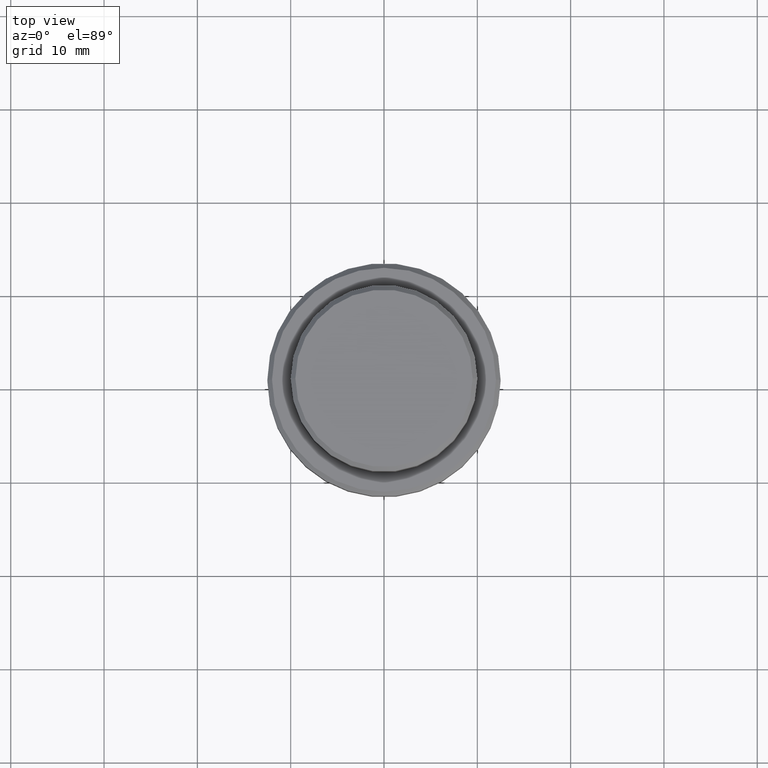
[diagram: clean part render]
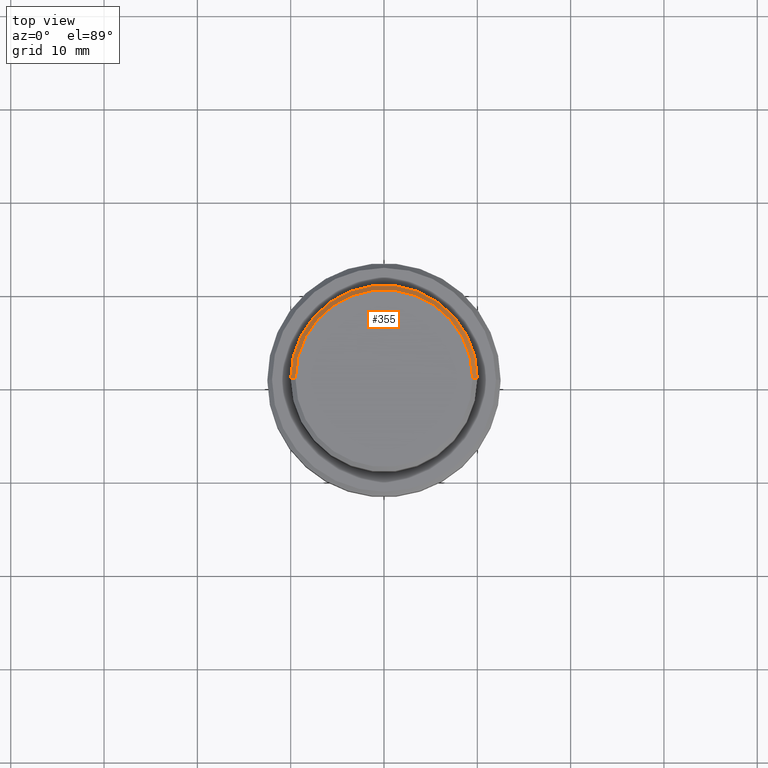
[diagram: same view with one face highlighted and labeled with its STEP entity id]
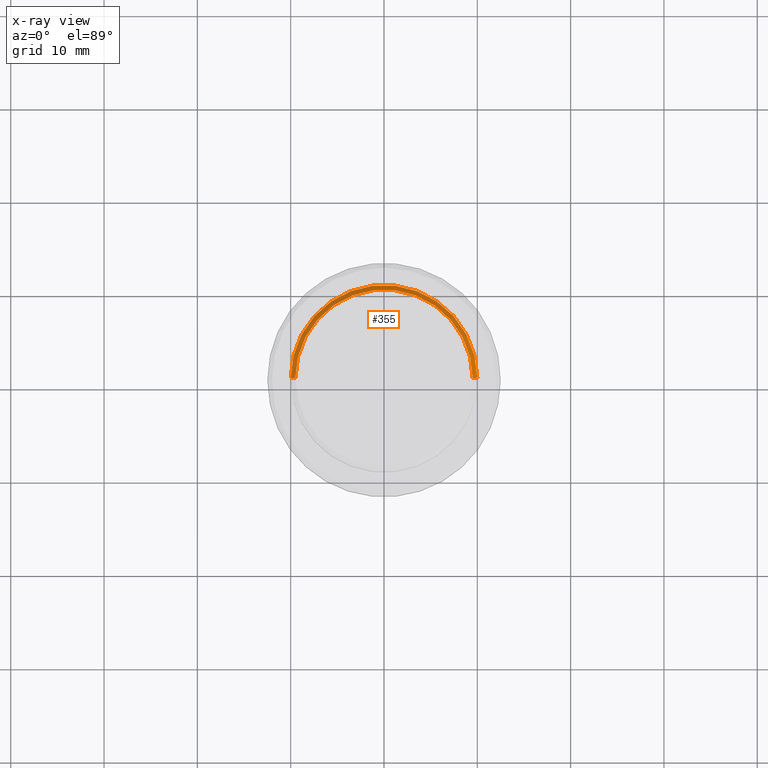
[diagram: x-ray of the same camera — body ghosted, the highlighted face saturated]
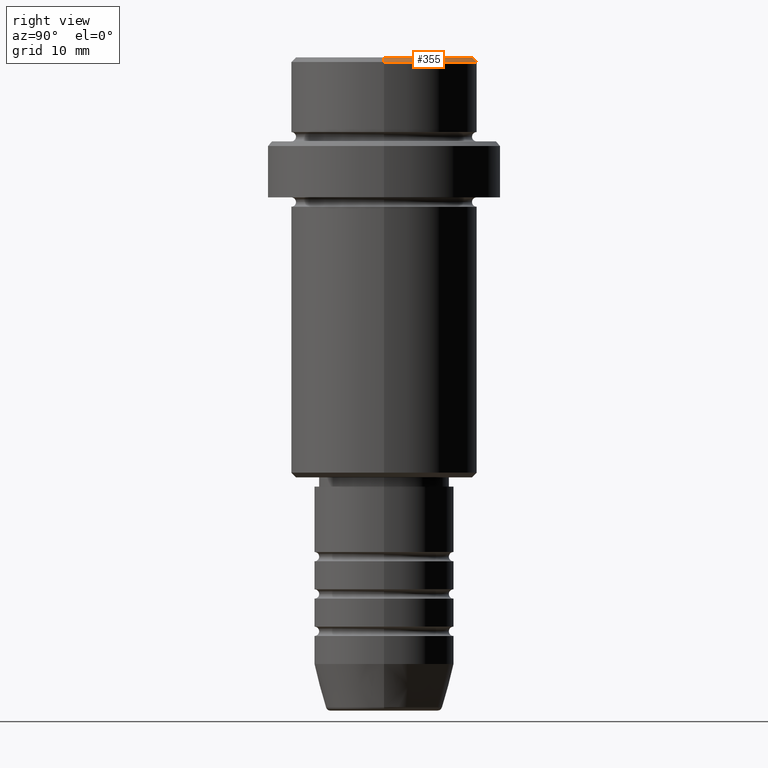
[diagram: same view with one face highlighted and labeled with its STEP entity id]
A machine part, top view. The second image highlights one B-rep face of the part: STEP entity #355.
The next image is the same camera in x-ray: the body ghosted, the highlighted face saturated — about 0% of this face is hidden behind the body in this view.
A second angle (right view) of the same face is appended — the face is thin or edge-on in the first view.
In plain terms, the highlighted conical surface has half-angle 45 deg.
Its self-contained STEP definition (entity closure, byte-faithful):
#2 = CARTESIAN_POINT ( 'NONE',  ( -9.499999999999994671, 0.000000000000000000, 0.000000000000000000 ) ) ;
#64 = AXIS2_PLACEMENT_3D ( 'NONE', #861, #631, #94 ) ;
#89 = VERTEX_POINT ( 'NONE', #1208 ) ;
#94 = DIRECTION ( 'NONE',  ( 1.000000000000000000, 0.000000000000000000, 0.000000000000000000 ) ) ;
#116 = CARTESIAN_POINT ( 'NONE',  ( -9.499999999999994671, 0.000000000000000000, 0.000000000000000000 ) ) ;
#196 = CARTESIAN_POINT ( 'NONE',  ( -9.999999999999998224, 1.224646799147353059E-15, -0.4999999999999970024 ) ) ;
#208 = ORIENTED_EDGE ( 'NONE', *, *, #680, .F. ) ;
#240 = VERTEX_POINT ( 'NONE', #1314 ) ;
#256 = VERTEX_POINT ( 'NONE', #116 ) ;
#355 = ADVANCED_FACE ( 'NONE', ( #1415 ), #359, .T. ) ;
#359 = CONICAL_SURFACE ( 'NONE', #1199, 9.499999999999994671, 0.7853981633974552734 ) ;
#416 = EDGE_CURVE ( 'NONE', #89, #240, #645, .T. ) ;
#421 = CIRCLE ( 'NONE', #64, 9.499999999999994671 ) ;
#463 = DIRECTION ( 'NONE',  ( -0.7071067811865525687, 0.000000000000000000, -0.7071067811865425767 ) ) ;
#466 = ORIENTED_EDGE ( 'NONE', *, *, #1197, .F. ) ;
#539 = LINE ( 'NONE', #2, #623 ) ;
#561 = DIRECTION ( 'NONE',  ( 0.000000000000000000, 0.000000000000000000, -1.000000000000000000 ) ) ;
#568 = DIRECTION ( 'NONE',  ( 0.7071067811865525687, 8.659560562354994488E-17, -0.7071067811865425767 ) ) ;
#623 = VECTOR ( 'NONE', #463, 999.9999999999998863 ) ;
#631 = DIRECTION ( 'NONE',  ( -0.000000000000000000, -0.000000000000000000, 1.000000000000000000 ) ) ;
#645 = LINE ( 'NONE', #882, #1056 ) ;
#649 = DIRECTION ( 'NONE',  ( 0.000000000000000000, 0.000000000000000000, -1.000000000000000000 ) ) ;
#680 = EDGE_CURVE ( 'NONE', #256, #1083, #539, .T. ) ;
#746 = CARTESIAN_POINT ( 'NONE',  ( 0.000000000000000000, 0.000000000000000000, 0.000000000000000000 ) ) ;
#775 = CARTESIAN_POINT ( 'NONE',  ( 0.000000000000000000, 0.000000000000000000, -0.4999999999999970024 ) ) ;
#861 = CARTESIAN_POINT ( 'NONE',  ( 0.000000000000000000, 0.000000000000000000, 0.000000000000000000 ) ) ;
#882 = CARTESIAN_POINT ( 'NONE',  ( 9.499999999999994671, 1.163414459189984894E-15, 0.000000000000000000 ) ) ;
#927 = ORIENTED_EDGE ( 'NONE', *, *, #416, .T. ) ;
#988 = CIRCLE ( 'NONE', #1342, 9.999999999999998224 ) ;
#1056 = VECTOR ( 'NONE', #568, 999.9999999999998863 ) ;
#1069 = EDGE_LOOP ( 'NONE', ( #1316, #927, #466, #208 ) ) ;
#1083 = VERTEX_POINT ( 'NONE', #196 ) ;
#1093 = DIRECTION ( 'NONE',  ( 1.000000000000000000, 0.000000000000000000, 0.000000000000000000 ) ) ;
#1107 = EDGE_CURVE ( 'NONE', #89, #256, #421, .T. ) ;
#1197 = EDGE_CURVE ( 'NONE', #1083, #240, #988, .T. ) ;
#1199 = AXIS2_PLACEMENT_3D ( 'NONE', #746, #649, #1250 ) ;
#1208 = CARTESIAN_POINT ( 'NONE',  ( 9.499999999999994671, 1.194030629168669075E-15, 0.000000000000000000 ) ) ;
#1250 = DIRECTION ( 'NONE',  ( -1.000000000000000000, 0.000000000000000000, 0.000000000000000000 ) ) ;
#1314 = CARTESIAN_POINT ( 'NONE',  ( 9.999999999999998224, 0.000000000000000000, -0.4999999999999970024 ) ) ;
#1316 = ORIENTED_EDGE ( 'NONE', *, *, #1107, .F. ) ;
#1342 = AXIS2_PLACEMENT_3D ( 'NONE', #775, #561, #1093 ) ;
#1415 = FACE_OUTER_BOUND ( 'NONE', #1069, .T. ) ;